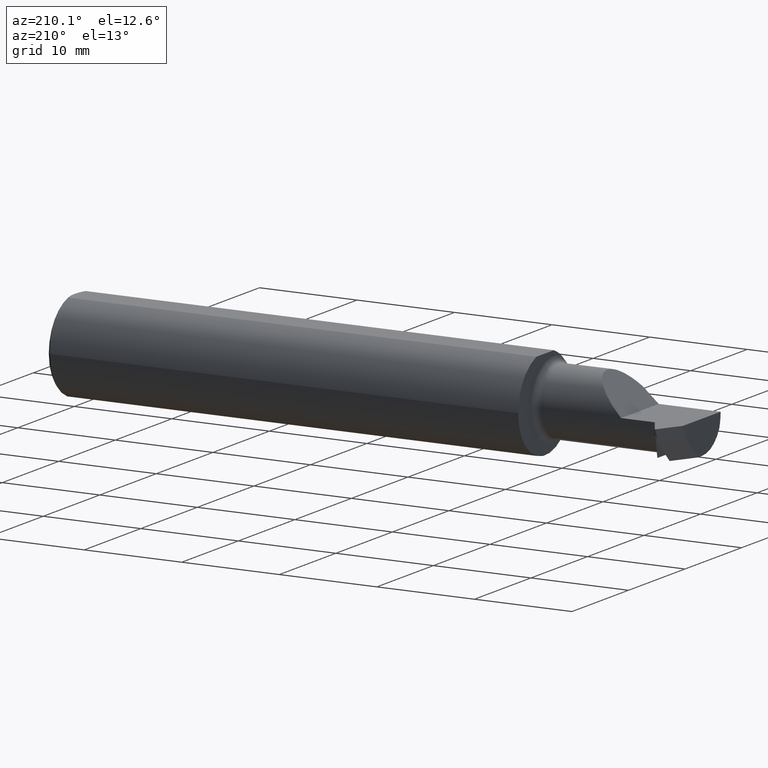
[diagram: clean part render]
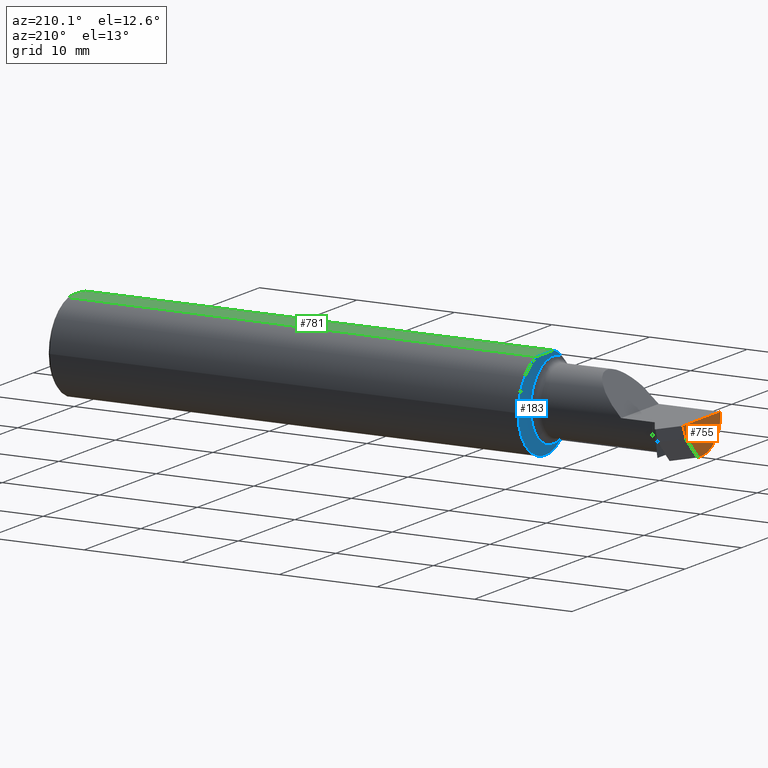
[diagram: same view with three faces highlighted in distinct colors, each labeled with its STEP entity id]
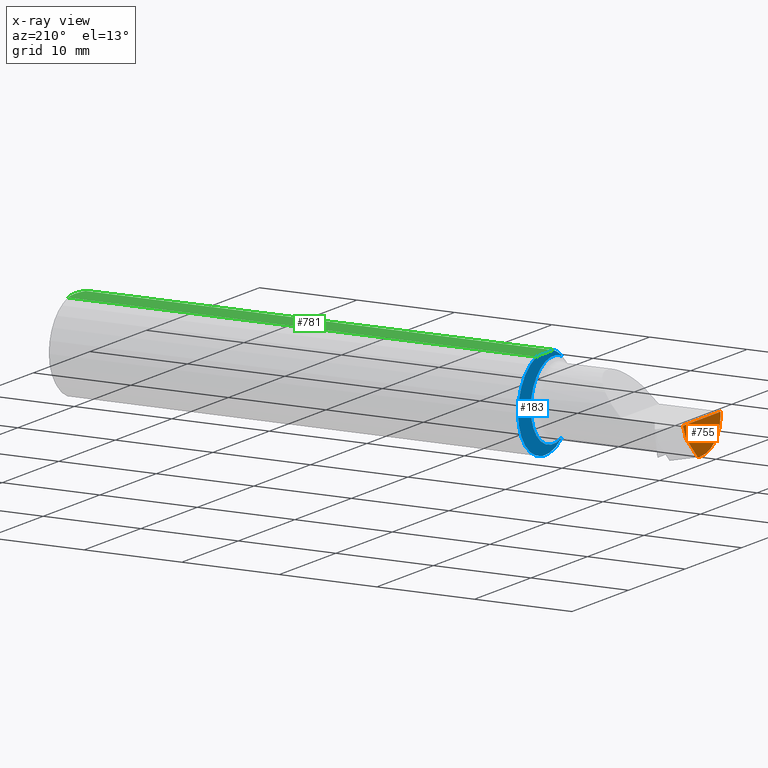
[diagram: x-ray of the same camera — body ghosted, the three highlighted faces saturated]
A machine part, auxiliary view with three faces highlighted in distinct colors.
The next image is the same camera in x-ray (body ghosted, the three faces saturated) — at least one of them is partly hidden behind the body in this view.
Their STEP definitions:

[orange] entity #755 — the highlighted planar face has unit normal (-1, -0, 0).
#8 = EDGE_CURVE ( 'NONE', #310, #529, #578, .T. ) ;
#36 = ORIENTED_EDGE ( 'NONE', *, *, #485, .F. ) ;
#41 = ORIENTED_EDGE ( 'NONE', *, *, #8, .T. ) ;
#59 = CARTESIAN_POINT ( 'NONE',  ( -2.500000000000000000, -0.1783697086546693900, -0.05730854678360196297 ) ) ;
#91 = VECTOR ( 'NONE', #231, 39.37007874015748854 ) ;
#113 = PLANE ( 'NONE',  #708 ) ;
#153 = DIRECTION ( 'NONE',  ( 1.000000000000000000, 1.224646799147352961E-16, -0.000000000000000000 ) ) ;
#160 = CIRCLE ( 'NONE', #277, 0.1330000000000000071 ) ;
#231 = DIRECTION ( 'NONE',  ( -6.842104469694077398E-17, 0.3768974211598647428, 0.9262550048032363037 ) ) ;
#244 = CARTESIAN_POINT ( 'NONE',  ( -2.500000000000000000, -0.05835000000000015175, -0.1330000000000000349 ) ) ;
#245 = EDGE_CURVE ( 'NONE', #851, #655, #826, .T. ) ;
#251 = VECTOR ( 'NONE', #707, 39.37007874015748143 ) ;
#253 = CARTESIAN_POINT ( 'NONE',  ( -2.500000000000000000, -0.05835000000000006154, 0.000000000000000000 ) ) ;
#275 = ORIENTED_EDGE ( 'NONE', *, *, #791, .F. ) ;
#277 = AXIS2_PLACEMENT_3D ( 'NONE', #253, #306, #780 ) ;
#296 = LINE ( 'NONE', #831, #91 ) ;
#306 = DIRECTION ( 'NONE',  ( 1.000000000000000000, 1.553500558300393113E-17, -0.000000000000000000 ) ) ;
#310 = VERTEX_POINT ( 'NONE', #759 ) ;
#329 = ORIENTED_EDGE ( 'NONE', *, *, #245, .F. ) ;
#365 = VECTOR ( 'NONE', #752, 39.37007874015748143 ) ;
#374 = EDGE_CURVE ( 'NONE', #655, #693, #713, .T. ) ;
#382 = CARTESIAN_POINT ( 'NONE',  ( -2.500000000000000000, 6.123233995736767268E-17, 0.000000000000000000 ) ) ;
#423 = CARTESIAN_POINT ( 'NONE',  ( -2.500000000000000000, 6.123233995736767268E-17, 0.000000000000000000 ) ) ;
#429 = AXIS2_PLACEMENT_3D ( 'NONE', #423, #153, #818 ) ;
#433 = CARTESIAN_POINT ( 'NONE',  ( -2.500000000000000000, -0.05835000000000018644, -0.1330000000000000349 ) ) ;
#438 = CARTESIAN_POINT ( 'NONE',  ( -2.500000000000000000, 0.07452118017992460930, 0.000000000000000000 ) ) ;
#480 = EDGE_LOOP ( 'NONE', ( #36, #41, #605, #275, #638, #329 ) ) ;
#485 = EDGE_CURVE ( 'NONE', #310, #851, #296, .T. ) ;
#529 = VERTEX_POINT ( 'NONE', #837 ) ;
#578 = LINE ( 'NONE', #716, #251 ) ;
#605 = ORIENTED_EDGE ( 'NONE', *, *, #803, .F. ) ;
#638 = ORIENTED_EDGE ( 'NONE', *, *, #374, .F. ) ;
#646 = FACE_OUTER_BOUND ( 'NONE', #480, .T. ) ;
#653 = DIRECTION ( 'NONE',  ( 1.224646799147352961E-16, -1.000000000000000000, 0.000000000000000000 ) ) ;
#655 = VERTEX_POINT ( 'NONE', #673 ) ;
#673 = CARTESIAN_POINT ( 'NONE',  ( -2.500000000000000000, -0.1873499999999998777, 0.000000000000000000 ) ) ;
#693 = VERTEX_POINT ( 'NONE', #59 ) ;
#707 = DIRECTION ( 'NONE',  ( 0.000000000000000000, -0.7071067811865535679, -0.7071067811865414665 ) ) ;
#708 = AXIS2_PLACEMENT_3D ( 'NONE', #382, #792, #653 ) ;
#713 = CIRCLE ( 'NONE', #429, 0.1873499999999999610 ) ;
#716 = CARTESIAN_POINT ( 'NONE',  ( -2.500000000000000000, 0.9912844120552303240, 0.8871084618176598990 ) ) ;
#718 = DIRECTION ( 'NONE',  ( 0.000000000000000000, 1.000000000000000000, 8.972136187338138840E-17 ) ) ;
#752 = DIRECTION ( 'NONE',  ( 1.224646799147352961E-16, -1.000000000000000000, 0.000000000000000000 ) ) ;
#755 = ADVANCED_FACE ( 'NONE', ( #646 ), #113, .T. ) ;
#759 = CARTESIAN_POINT ( 'NONE',  ( -2.500000000000000000, 0.05417595023755428230, -0.05000000000000017625 ) ) ;
#764 = VERTEX_POINT ( 'NONE', #244 ) ;
#765 = VECTOR ( 'NONE', #718, 39.37007874015748143 ) ;
#780 = DIRECTION ( 'NONE',  ( 0.000000000000000000, -1.000000000000000000, 0.000000000000000000 ) ) ;
#791 = EDGE_CURVE ( 'NONE', #693, #764, #160, .T. ) ;
#792 = DIRECTION ( 'NONE',  ( -1.000000000000000000, -1.224646799147352961E-16, 0.000000000000000000 ) ) ;
#803 = EDGE_CURVE ( 'NONE', #764, #529, #854, .T. ) ;
#818 = DIRECTION ( 'NONE',  ( 0.000000000000000000, 1.000000000000000000, 0.000000000000000000 ) ) ;
#826 = LINE ( 'NONE', #829, #365 ) ;
#829 = CARTESIAN_POINT ( 'NONE',  ( -2.500000000000000000, 6.123233995736767268E-17, 0.000000000000000000 ) ) ;
#831 = CARTESIAN_POINT ( 'NONE',  ( -2.500000000000000000, 0.06393532237734537993, -0.02601557670413339601 ) ) ;
#837 = CARTESIAN_POINT ( 'NONE',  ( -2.500000000000000000, -0.02882404976244697103, -0.1329999999999999793 ) ) ;
#851 = VERTEX_POINT ( 'NONE', #438 ) ;
#854 = LINE ( 'NONE', #433, #765 ) ;

[blue] entity #183 — the highlighted planar face has unit normal (-1, 0, 0).
#15 = CIRCLE ( 'NONE', #576, 0.1580000000000002791 ) ;
#82 = ORIENTED_EDGE ( 'NONE', *, *, #830, .F. ) ;
#85 = DIRECTION ( 'NONE',  ( 1.000000000000000000, -9.108622265535208572E-17, 0.000000000000000000 ) ) ;
#89 = VERTEX_POINT ( 'NONE', #864 ) ;
#98 = VERTEX_POINT ( 'NONE', #533 ) ;
#116 = DIRECTION ( 'NONE',  ( 1.000000000000000000, -9.108622265535208572E-17, 0.000000000000000000 ) ) ;
#137 = FACE_OUTER_BOUND ( 'NONE', #174, .T. ) ;
#149 = ORIENTED_EDGE ( 'NONE', *, *, #821, .F. ) ;
#174 = EDGE_LOOP ( 'NONE', ( #853, #285, #457, #149, #82 ) ) ;
#178 = EDGE_CURVE ( 'NONE', #679, #187, #15, .T. ) ;
#183 = ADVANCED_FACE ( 'NONE', ( #137 ), #875, .T. ) ;
#187 = VERTEX_POINT ( 'NONE', #419 ) ;
#191 = VECTOR ( 'NONE', #201, 39.37007874015748143 ) ;
#201 = DIRECTION ( 'NONE',  ( 9.108622265535208572E-17, 1.000000000000000000, 1.608104540654733016E-16 ) ) ;
#210 = CIRCLE ( 'NONE', #471, 0.1873499999999999055 ) ;
#285 = ORIENTED_EDGE ( 'NONE', *, *, #394, .F. ) ;
#328 = DIRECTION ( 'NONE',  ( -1.000000000000000000, 9.108622265535208572E-17, 0.000000000000000000 ) ) ;
#343 = DIRECTION ( 'NONE',  ( 0.000000000000000000, -1.000000000000000000, 0.000000000000000000 ) ) ;
#373 = LINE ( 'NONE', #399, #191 ) ;
#394 = EDGE_CURVE ( 'NONE', #558, #679, #210, .T. ) ;
#399 = CARTESIAN_POINT ( 'NONE',  ( -1.900000000000000133, 0.2123500000000001220, 0.1773500000000001187 ) ) ;
#400 = DIRECTION ( 'NONE',  ( -1.000000000000000000, 9.108622265535208572E-17, -0.000000000000000000 ) ) ;
#415 = DIRECTION ( 'NONE',  ( -9.108622265535208572E-17, -1.000000000000000000, 0.000000000000000000 ) ) ;
#419 = CARTESIAN_POINT ( 'NONE',  ( -1.900000000000000133, -0.1160303770351314295, -0.1470951192429074961 ) ) ;
#457 = ORIENTED_EDGE ( 'NONE', *, *, #617, .T. ) ;
#464 = CARTESIAN_POINT ( 'NONE',  ( -1.900000000000000133, -0.1160303770344977697, 0.1470951192431559917 ) ) ;
#466 = CARTESIAN_POINT ( 'NONE',  ( -1.900000000000000133, -0.05835000000000008930, 0.000000000000000000 ) ) ;
#471 = AXIS2_PLACEMENT_3D ( 'NONE', #692, #85, #492 ) ;
#492 = DIRECTION ( 'NONE',  ( 0.000000000000000000, -1.000000000000000000, -3.552713678800500929E-15 ) ) ;
#504 = AXIS2_PLACEMENT_3D ( 'NONE', #845, #116, #580 ) ;
#533 = CARTESIAN_POINT ( 'NONE',  ( -1.900000000000000133, 0.1873500000000000443, 0.000000000000000000 ) ) ;
#558 = VERTEX_POINT ( 'NONE', #856 ) ;
#576 = AXIS2_PLACEMENT_3D ( 'NONE', #466, #400, #343 ) ;
#580 = DIRECTION ( 'NONE',  ( 0.000000000000000000, -1.000000000000000000, 0.000000000000000000 ) ) ;
#617 = EDGE_CURVE ( 'NONE', #558, #89, #373, .T. ) ;
#618 = CARTESIAN_POINT ( 'NONE',  ( -1.900000000000000133, 0.1873500000000002941, 0.000000000000000000 ) ) ;
#639 = CIRCLE ( 'NONE', #504, 0.1873499999999999055 ) ;
#679 = VERTEX_POINT ( 'NONE', #464 ) ;
#692 = CARTESIAN_POINT ( 'NONE',  ( -1.900000000000000133, 1.347111479062088503E-16, 0.000000000000000000 ) ) ;
#705 = CIRCLE ( 'NONE', #820, 0.1873499999999999055 ) ;
#722 = DIRECTION ( 'NONE',  ( 0.000000000000000000, -1.000000000000000000, 0.000000000000000000 ) ) ;
#774 = DIRECTION ( 'NONE',  ( 1.000000000000000000, -9.108622265535208572E-17, 0.000000000000000000 ) ) ;
#820 = AXIS2_PLACEMENT_3D ( 'NONE', #841, #774, #722 ) ;
#821 = EDGE_CURVE ( 'NONE', #98, #89, #705, .T. ) ;
#830 = EDGE_CURVE ( 'NONE', #187, #98, #639, .T. ) ;
#841 = CARTESIAN_POINT ( 'NONE',  ( -1.900000000000000133, 1.347111479062088503E-16, 0.000000000000000000 ) ) ;
#845 = CARTESIAN_POINT ( 'NONE',  ( -1.900000000000000133, 1.347111479062088503E-16, 0.000000000000000000 ) ) ;
#853 = ORIENTED_EDGE ( 'NONE', *, *, #178, .F. ) ;
#855 = AXIS2_PLACEMENT_3D ( 'NONE', #618, #328, #415 ) ;
#856 = CARTESIAN_POINT ( 'NONE',  ( -1.900000000000000133, -0.06039039658753634493, 0.1773500000000000909 ) ) ;
#864 = CARTESIAN_POINT ( 'NONE',  ( -1.900000000000000133, 0.06039039658753678902, 0.1773500000000000909 ) ) ;
#875 = PLANE ( 'NONE',  #855 ) ;

[green] entity #781 — the highlighted planar face has unit normal (-0, 0, -1).
#1 = ORIENTED_EDGE ( 'NONE', *, *, #500, .T. ) ;
#4 = DIRECTION ( 'NONE',  ( 1.000000000000000000, 1.224646799147352961E-16, -0.000000000000000000 ) ) ;
#13 = CARTESIAN_POINT ( 'NONE',  ( -0.009999999999999073866, -0.06039039658753610901, 0.1773500000000000909 ) ) ;
#14 = LINE ( 'NONE', #284, #698 ) ;
#21 = CARTESIAN_POINT ( 'NONE',  ( -4.969808731120575398E-33, 3.199103279729614531E-16, 0.1773500000000000909 ) ) ;
#25 = CARTESIAN_POINT ( 'NONE',  ( -0.004318418993202907154, -0.04060972747957771606, 0.1773500000000000909 ) ) ;
#27 = ORIENTED_EDGE ( 'NONE', *, *, #554, .T. ) ;
#37 = DIRECTION ( 'NONE',  ( -2.498191301712524670E-33, 1.608104540654733016E-16, -1.000000000000000000 ) ) ;
#42 = ORIENTED_EDGE ( 'NONE', *, *, #96, .T. ) ;
#50 = DIRECTION ( 'NONE',  ( 0.000000000000000000, 1.000000000000000000, 1.608104540654733016E-16 ) ) ;
#89 = VERTEX_POINT ( 'NONE', #864 ) ;
#96 = EDGE_CURVE ( 'NONE', #558, #579, #391, .T. ) ;
#173 = CARTESIAN_POINT ( 'NONE',  ( -0.009999999999999073866, -0.06039039658753610901, 0.1773500000000000909 ) ) ;
#186 = CARTESIAN_POINT ( 'NONE',  ( -0.006852151730285416242, 0.05062478141268286075, 0.1773500000000000909 ) ) ;
#191 = VECTOR ( 'NONE', #201, 39.37007874015748143 ) ;
#201 = DIRECTION ( 'NONE',  ( 9.108622265535208572E-17, 1.000000000000000000, 1.608104540654733016E-16 ) ) ;
#208 = EDGE_CURVE ( 'NONE', #579, #427, #697, .T. ) ;
#214 = ORIENTED_EDGE ( 'NONE', *, *, #208, .T. ) ;
#249 = CARTESIAN_POINT ( 'NONE',  ( -0.009999999999999073866, 0.06039039658753679596, 0.1773500000000000909 ) ) ;
#284 = CARTESIAN_POINT ( 'NONE',  ( -2.500000000000000000, 0.06039039658753648371, 0.1773500000000000909 ) ) ;
#301 = EDGE_LOOP ( 'NONE', ( #778, #42, #214, #27, #1 ) ) ;
#307 = CARTESIAN_POINT ( 'NONE',  ( 5.242517010058283000E-16, 0.01028390533945651962, 0.1773500000000001187 ) ) ;
#312 = CARTESIAN_POINT ( 'NONE',  ( -0.009999999999999073866, 0.06039039658753679596, 0.1773500000000000909 ) ) ;
#325 = FACE_OUTER_BOUND ( 'NONE', #301, .T. ) ;
#353 = VECTOR ( 'NONE', #4, 39.37007874015748143 ) ;
#359 = CARTESIAN_POINT ( 'NONE',  ( 5.171903141325568845E-16, -0.01026980879711894036, 0.1773500000000000909 ) ) ;
#373 = LINE ( 'NONE', #399, #191 ) ;
#391 = LINE ( 'NONE', #455, #353 ) ;
#393 = CARTESIAN_POINT ( 'NONE',  ( -2.500000000000000000, 0.2123500000000002053, 0.1773500000000001187 ) ) ;
#399 = CARTESIAN_POINT ( 'NONE',  ( -1.900000000000000133, 0.2123500000000001220, 0.1773500000000001187 ) ) ;
#425 = CARTESIAN_POINT ( 'NONE',  ( -4.969808731120575398E-33, 3.199103279729614531E-16, 0.1773500000000000909 ) ) ;
#427 = VERTEX_POINT ( 'NONE', #21 ) ;
#435 = CARTESIAN_POINT ( 'NONE',  ( -0.004345633232307606099, 0.04072602595449463514, 0.1773500000000000909 ) ) ;
#447 = AXIS2_PLACEMENT_3D ( 'NONE', #393, #37, #50 ) ;
#455 = CARTESIAN_POINT ( 'NONE',  ( -2.500000000000000000, -0.06039039658753642126, 0.1773500000000000909 ) ) ;
#497 = CARTESIAN_POINT ( 'NONE',  ( -4.969808731120575398E-33, 3.199103279729614531E-16, 0.1773500000000000909 ) ) ;
#500 = EDGE_CURVE ( 'NONE', #814, #89, #14, .T. ) ;
#508 = PLANE ( 'NONE',  #447 ) ;
#551 = CARTESIAN_POINT ( 'NONE',  ( -0.0008974174807281084338, -0.02044204845470678697, 0.1773500000000000909 ) ) ;
#554 = EDGE_CURVE ( 'NONE', #427, #814, #719, .T. ) ;
#558 = VERTEX_POINT ( 'NONE', #856 ) ;
#579 = VERTEX_POINT ( 'NONE', #173 ) ;
#617 = EDGE_CURVE ( 'NONE', #558, #89, #373, .T. ) ;
#636 = CARTESIAN_POINT ( 'NONE',  ( -0.006863038267947816837, -0.05065855487579175309, 0.1773500000000001187 ) ) ;
#697 = B_SPLINE_CURVE_WITH_KNOTS ( 'NONE', 3,
 ( #13, #636, #25, #551, #359, #425 ),
 .UNSPECIFIED., .F., .F.,
 ( 4, 2, 4 ),
 ( 0.001950265285394878591, 0.002725445821525866816, 0.003500626357656855259 ),
 .UNSPECIFIED. ) ;
#698 = VECTOR ( 'NONE', #833, 39.37007874015748143 ) ;
#719 = B_SPLINE_CURVE_WITH_KNOTS ( 'NONE', 3,
 ( #497, #307, #777, #435, #186, #249 ),
 .UNSPECIFIED., .F., .F.,
 ( 4, 2, 4 ),
 ( 0.003500626357656855259, 0.004276870921898036533, 0.005053115486139217807 ),
 .UNSPECIFIED. ) ;
#777 = CARTESIAN_POINT ( 'NONE',  ( -0.0009167640511158918265, 0.02059964124962103751, 0.1773500000000000909 ) ) ;
#778 = ORIENTED_EDGE ( 'NONE', *, *, #617, .F. ) ;
#781 = ADVANCED_FACE ( 'NONE', ( #325 ), #508, .F. ) ;
#814 = VERTEX_POINT ( 'NONE', #312 ) ;
#833 = DIRECTION ( 'NONE',  ( -1.000000000000000000, -1.224646799147352961E-16, 0.000000000000000000 ) ) ;
#856 = CARTESIAN_POINT ( 'NONE',  ( -1.900000000000000133, -0.06039039658753634493, 0.1773500000000000909 ) ) ;
#864 = CARTESIAN_POINT ( 'NONE',  ( -1.900000000000000133, 0.06039039658753678902, 0.1773500000000000909 ) ) ;